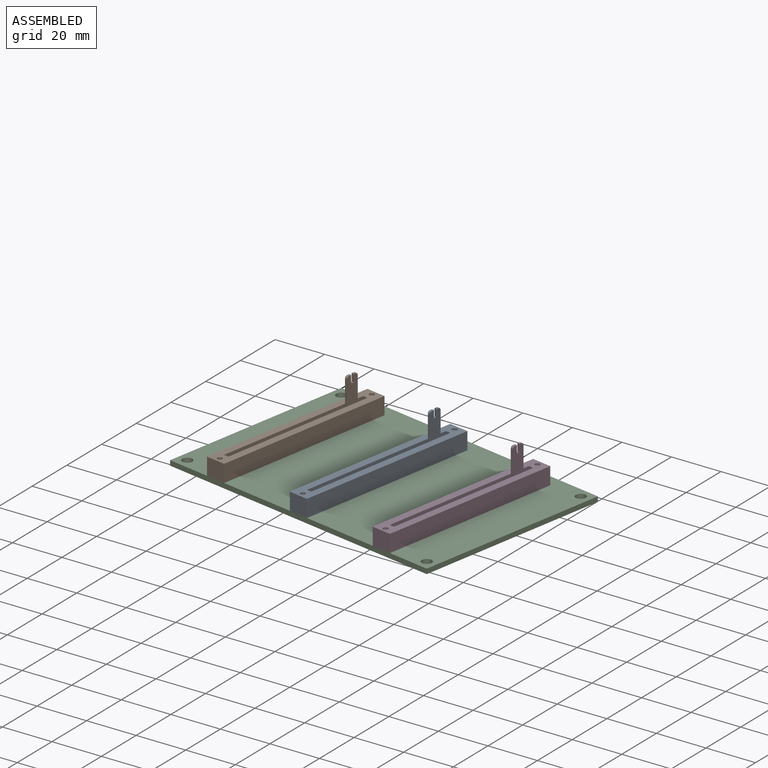
[diagram: assembled view]
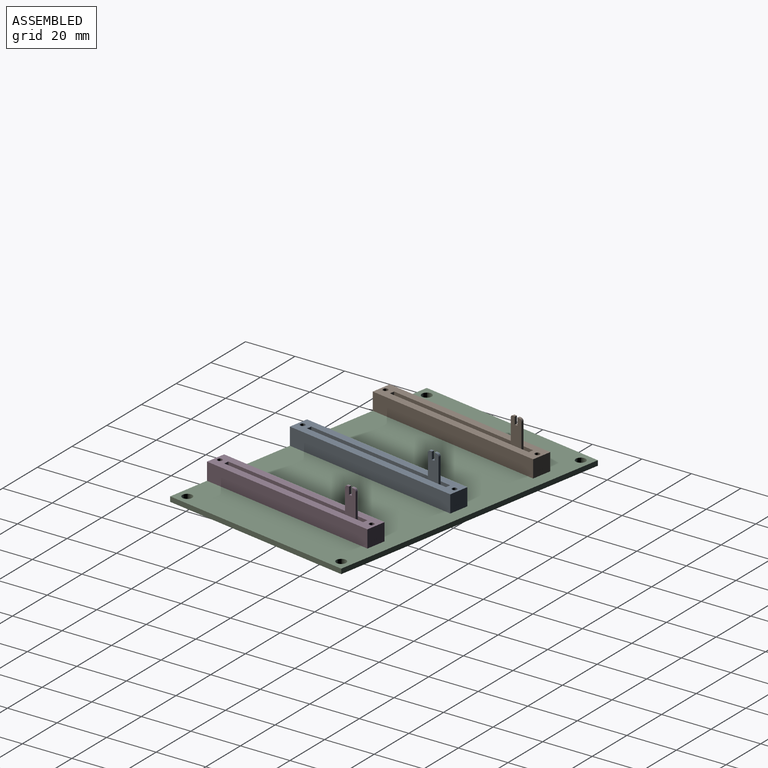
[diagram: assembled view, second angle]
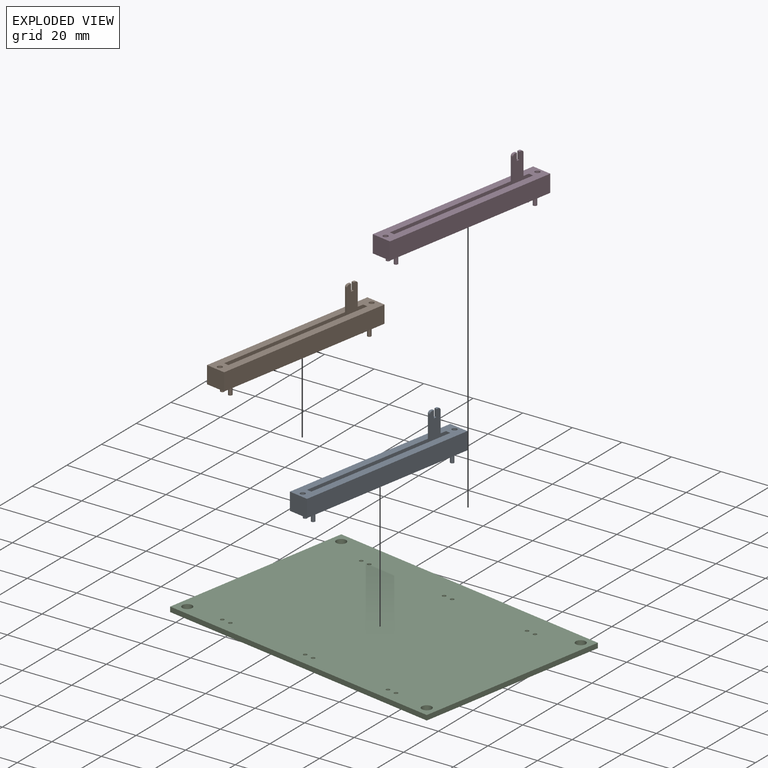
[diagram: exploded view]
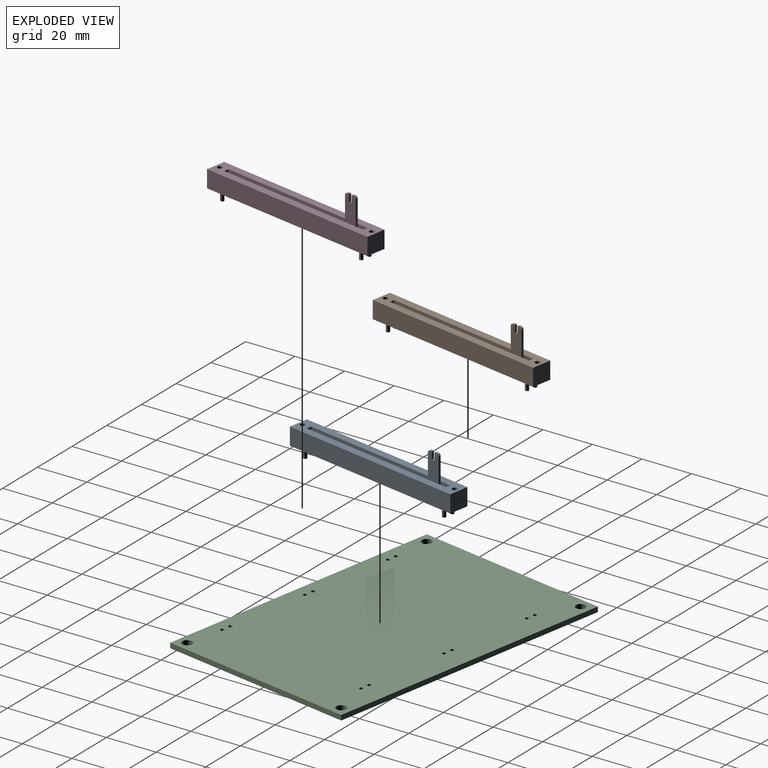
[diagram: exploded view, second angle]
ASSEMBLY  parts=4 mates=6
PART A: 32 faces, bbox 8x75x21 mm
  f0: plane 1x0.9mm, normal (0,0,1), area 0.9mm2, adj f1,f16,f20,f21
  f1: plane 12.5x5mm, normal (1,0,0), area 58.5mm2, adj f0,f12,f15,f17,f18,f19,f20,f21
  f2: plane 75x8mm, normal (0,0,1), area 463.7mm2, adj f3,f4,f5,f6,f8,f9,f10,f11
  f3: plane 8x7mm, normal (0,-1,0), area 56mm2, adj f2,f4,f6,f7
  f4: plane 75x7mm, normal (1,0,0), area 525mm2, adj f2,f3,f5,f7
  f5: plane 8x7mm, normal (0,1,0), area 56mm2, adj f2,f4,f6,f7
  f6: plane 75x7mm, normal (-1,0,0), area 525mm2, adj f2,f3,f5,f7
  f7: plane 75x8mm, normal (0,0,-1), area 586.6mm2, adj f3,f4,f5,f6,f13,f14,f24,f26
  f8: plane 65x2mm, normal (-1,0,0), area 130mm2, adj f2,f9,f11,f12
  f9: plane 2x2mm, normal (0,-1,0), area 4mm2, adj f2,f8,f10,f12
  f10: plane 65x2mm, normal (1,0,0), area 130mm2, adj f2,f9,f11,f12
  f11: plane 2x2mm, normal (0,1,0), area 4mm2, adj f2,f8,f10,f12
  f12: plane 65x2mm, normal (0,0,1), area 125mm2, adj f1,f8,f9,f10,f11,f15,f16,f17
  f13: cylinder r=1mm len=7mm, axis (0,0,1), area 44mm2, adj f2,f7
  f14: cylinder r=1mm len=7mm, axis (0,0,1), area 44mm2, adj f2,f7
  f15: plane 11.5x1mm, normal (0,1,0), area 11.5mm2, adj f1,f12,f16,f19
  f16: plane 12.5x5mm, normal (-1,0,0), area 58.5mm2, adj f0,f12,f15,f17,f18,f19,f20,f21
  f17: plane 11.5x1mm, normal (0,-1,0), area 11.5mm2, adj f1,f12,f16,f20
  f18: plane 1x0.9mm, normal (0,0,1), area 0.9mm2, adj f1,f16,f19,f22
  f19: cylinder r=1mm len=1mm, axis (1,0,0), area 1.6mm2, adj f1,f15,f16,f18
  f20: cylinder r=1mm len=1mm, axis (-1,0,0), area 1.6mm2, adj f0,f1,f16,f17
  f21: plane 3x1mm, normal (0,1,0), area 3mm2, adj f0,f1,f16,f23
  f22: plane 3x1mm, normal (0,-1,0), area 3mm2, adj f1,f16,f18,f23
  f23: plane 1.2x1mm, normal (0,0,1), area 1.2mm2, adj f1,f16,f21,f22
  f24: cylinder r=0.75mm len=3.5mm, axis (0,0,1), area 16.5mm2, adj f7,f25
  f25: plane 1.5x1.5mm, normal (0,0,-1), area 1.8mm2, adj f24
  f26: cylinder r=0.75mm len=3.5mm, axis (0,0,1), area 16.5mm2, adj f7,f27
  f27: plane 1.5x1.5mm, normal (0,0,-1), area 1.8mm2, adj f26
  f28: cylinder r=0.75mm len=3.5mm, axis (0,0,1), area 16.5mm2, adj f7,f29
  f29: plane 1.5x1.5mm, normal (0,0,-1), area 1.8mm2, adj f28
  f30: cylinder r=0.75mm len=3.5mm, axis (0,0,1), area 16.5mm2, adj f7,f31
  f31: plane 1.5x1.5mm, normal (0,0,-1), area 1.8mm2, adj f30
PART B: same geometry as A
PART C: 22 faces, bbox 120x80x2 mm
  f0: plane 80x2mm, normal (1,0,0), area 160mm2, adj f1,f18,f20,f21
  f1: plane 120x2mm, normal (0,1,0), area 240mm2, adj f0,f2,f20,f21
  f2: plane 80x2mm, normal (-1,0,0), area 160mm2, adj f1,f18,f20,f21
  f3: cylinder r=2mm len=4mm, axis (0,0,-1), area 25.1mm2, adj f20,f21
  f4: cylinder r=2mm len=4mm, axis (0,0,-1), area 25.1mm2, adj f20,f21
  f5: cylinder r=2mm len=4mm, axis (0,0,-1), area 25.1mm2, adj f20,f21
  f6: cylinder r=0.75mm len=2mm, axis (0,0,-1), area 9.4mm2, adj f20,f21
  f7: cylinder r=0.75mm len=2mm, axis (0,0,-1), area 9.4mm2, adj f20,f21
  f8: cylinder r=0.75mm len=2mm, axis (0,0,-1), area 9.4mm2, adj f20,f21
  f9: cylinder r=0.75mm len=2mm, axis (0,0,-1), area 9.4mm2, adj f20,f21
  f10: cylinder r=0.75mm len=2mm, axis (0,0,-1), area 9.4mm2, adj f20,f21
  f11: cylinder r=0.75mm len=2mm, axis (0,0,-1), area 9.4mm2, adj f20,f21
  f12: cylinder r=0.75mm len=2mm, axis (0,0,-1), area 9.4mm2, adj f20,f21
  f13: cylinder r=0.75mm len=2mm, axis (0,0,-1), area 9.4mm2, adj f20,f21
  f14: cylinder r=0.75mm len=2mm, axis (0,0,-1), area 9.4mm2, adj f20,f21
  f15: cylinder r=0.75mm len=2mm, axis (0,0,-1), area 9.4mm2, adj f20,f21
  f16: cylinder r=0.75mm len=2mm, axis (0,0,-1), area 9.4mm2, adj f20,f21
  f17: cylinder r=0.75mm len=2mm, axis (0,0,-1), area 9.4mm2, adj f20,f21
  f18: plane 120x2mm, normal (0,-1,0), area 240mm2, adj f0,f2,f20,f21
  f19: cylinder r=2mm len=4mm, axis (0,0,-1), area 25.1mm2, adj f20,f21
  f20: plane 120x80mm, normal (0,0,1), area 9528.5mm2, adj f0,f1,f2,f3,f4,f5,f6,f7
  f21: plane 120x80mm, normal (0,0,-1), area 9528.5mm2, adj f0,f1,f2,f3,f4,f5,f6,f7
PART D: same geometry as A
PLACE A rot(axis=(0,0,-1),10deg) t=(22.56,7.6,0)mm
PLACE B rot(axis=(0,0,-1),10deg) t=(-15.6,14.33,0)mm
PLACE C rot(axis=(0,0,-1),10deg) t=(23,10.07,-2)mm
PLACE D rot(axis=(0,0,-1),10deg) t=(60.72,0.87,0)mm
MATE revolute C.f11 <-> B.f28  axis (0,0,1) through (-11.8,46.66,0)mm
MATE revolute D.f24 <-> C.f8  axis (0,0,-1) through (56.93,-31.46,0)mm
MATE revolute C.f15 <-> A.f28  axis (0,0,1) through (26.36,39.94,0)mm
MATE revolute C.f12 <-> B.f24  axis (0,0,1) through (-19.4,-18,0)mm
MATE revolute C.f7 <-> D.f28  axis (0,0,1) through (64.52,33.21,0)mm
MATE revolute A.f24 <-> C.f16  axis (0,0,1) through (18.76,-24.73,0)mm
